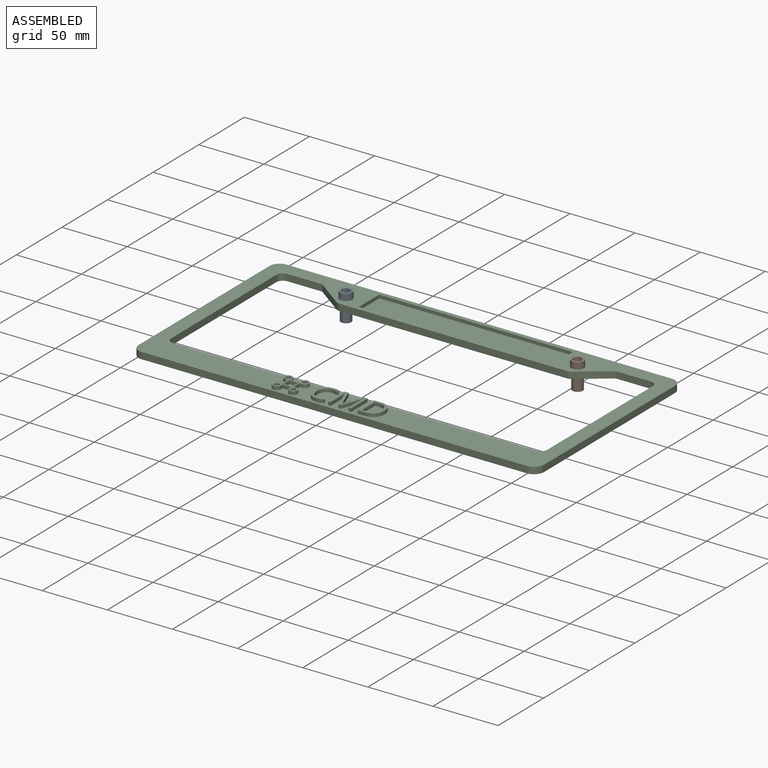
[diagram: assembled view]
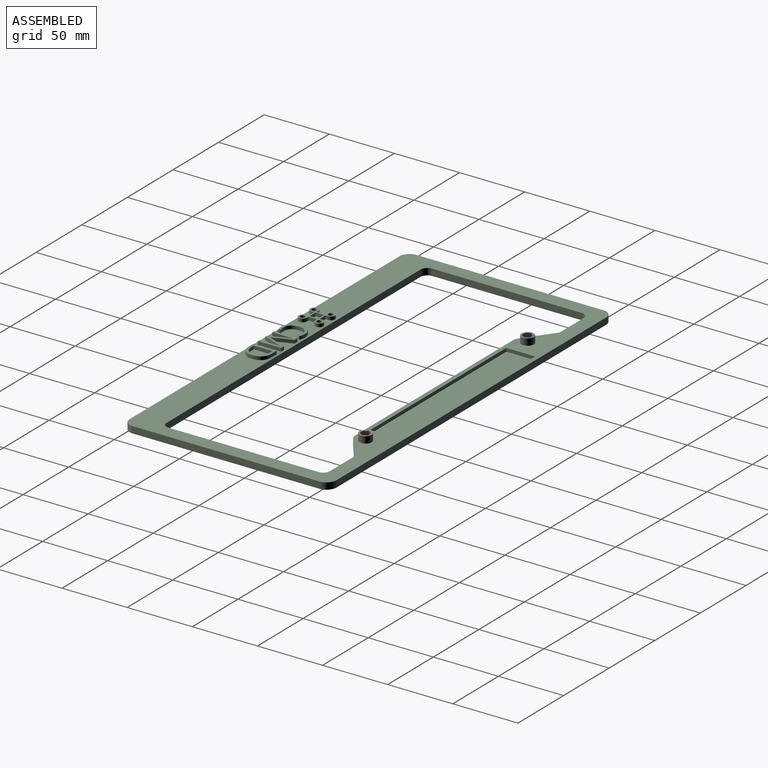
[diagram: assembled view, second angle]
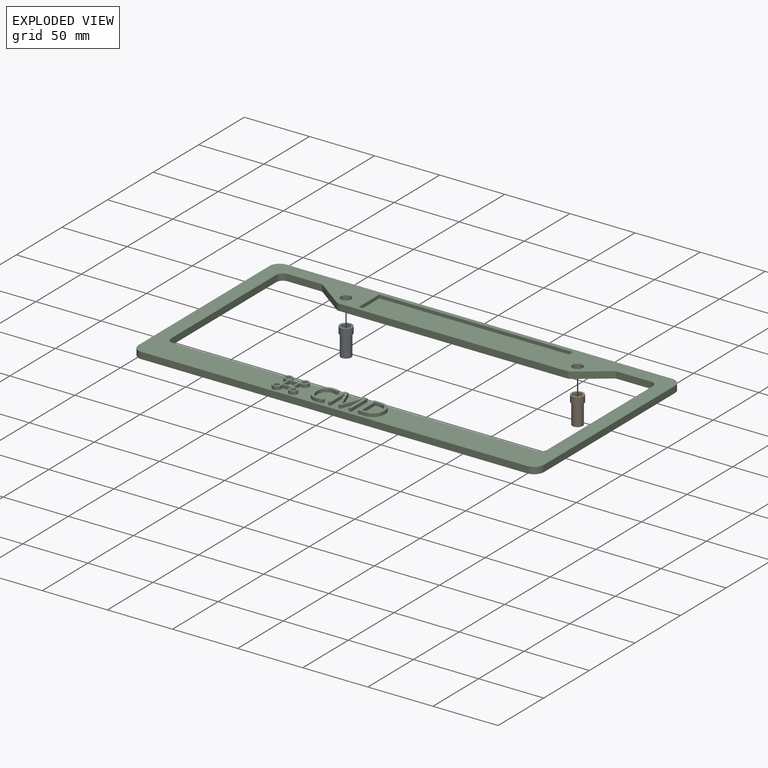
[diagram: exploded view]
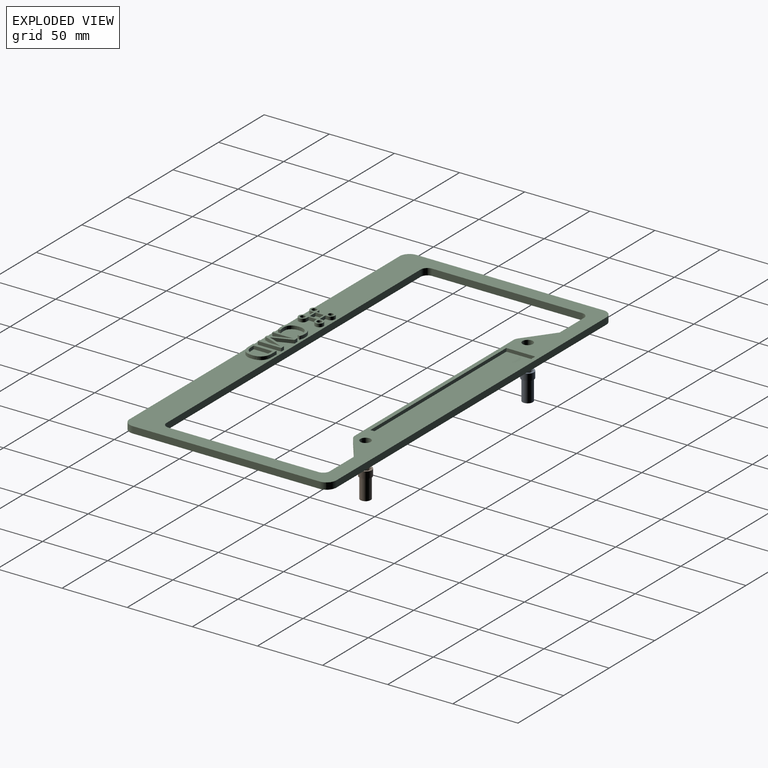
[diagram: exploded view, second angle]
ASSEMBLY  parts=3 mates=2
PART A: 12 faces, bbox 9.5x9.5x21 mm
  f0: cylinder r=3.97mm len=15.88mm, axis (0,0,-1), area 395.9mm2, adj f1,f4
  f1: plane 7.94x7.94mm, normal (0,0,-1), area 49.5mm2, adj f0
  f2: cylinder r=4.76mm len=9.53mm, axis (0,0,-1), area 152mm2, adj f3,f4
  f3: plane 9.53x9.53mm, normal (0,0,1), area 34.5mm2, adj f2,f5,f6,f7,f8,f9,f10
  f4: plane 9.53x9.53mm, normal (0,0,-1), area 21.8mm2, adj f0,f2
  f5: plane 5.08x3.16mm, normal (0.84,-0.54,0), area 19.1mm2, adj f3,f6,f10,f11
  f6: plane 5.08x3.35mm, normal (0.89,0.46,0), area 19.1mm2, adj f3,f5,f7,f11
  f7: plane 5.08x3.76mm, normal (0.05,1,0), area 19.1mm2, adj f3,f6,f8,f11
  f8: plane 5.08x3.16mm, normal (-0.84,0.54,0), area 19.1mm2, adj f3,f7,f9,f11
  f9: plane 5.08x3.35mm, normal (-0.89,-0.46,0), area 19.1mm2, adj f3,f8,f10,f11
  f10: plane 5.08x3.76mm, normal (-0.05,-1,0), area 19.1mm2, adj f3,f5,f9,f11
  f11: plane 7.52x6.69mm, normal (0,0,1), area 36.8mm2, adj f5,f6,f7,f8,f9,f10
PART B: same geometry as A
PART C: 112 faces, bbox 311.2x158.8x7.6 mm
  f0: plane 311.15x158.75mm, normal (0,0,1), area 12598.2mm2, adj f1,f2,f3,f4,f5,f6,f7,f8
  f1: plane 295.91x5.08mm, normal (0,1,0), area 1503.2mm2, adj f0,f15,f20,f23
  f2: plane 143.51x5.08mm, normal (-1,0,0), area 729mm2, adj f0,f15,f20,f21
  f3: plane 295.91x5.08mm, normal (0,-1,0), area 1503.2mm2, adj f0,f15,f21,f22
  f4: plane 26.67x5.08mm, normal (0,-1,0), area 135.5mm2, adj f0,f13,f15,f16
  f5: plane 115.25x5.08mm, normal (-1,0,0), area 585.5mm2, adj f0,f15,f16,f17
  f6: plane 278.77x5.08mm, normal (0,1,0), area 1416.1mm2, adj f0,f15,f17,f18
  f7: plane 115.25x5.08mm, normal (1,0,0), area 585.5mm2, adj f0,f15,f18,f19
  f8: plane 26.67x5.08mm, normal (0,-1,0), area 135.5mm2, adj f0,f9,f15,f19
  f9: plane 22.47x16.48mm, normal (-0.59,-0.81,0), area 141.6mm2, adj f0,f8,f15,f24
  f10: plane 174.47x5.08mm, normal (0,-1,0), area 886.3mm2, adj f0,f15,f24,f25
  f11: cylinder r=3.97mm len=7.94mm, axis (0,0,-1), area 126.7mm2, adj f0,f15
  f12: cylinder r=3.97mm len=7.94mm, axis (0,0,-1), area 126.7mm2, adj f0,f15
  f13: plane 22.47x16.48mm, normal (0.59,-0.81,0), area 141.6mm2, adj f0,f4,f15,f25
  f14: plane 143.51x5.08mm, normal (1,0,0), area 729mm2, adj f0,f15,f22,f23
  f15: plane 311.15x158.75mm, normal (0,0,-1), area 16553.7mm2, adj f1,f2,f3,f4,f5,f6,f7,f8
  f16: cylinder r=5.08mm len=5.08mm, axis (0,0,-1), area 40.5mm2, adj f0,f4,f5,f15
  f17: cylinder r=5.08mm len=5.08mm, axis (0,0,-1), area 40.5mm2, adj f0,f5,f6,f15
  f18: cylinder r=5.08mm len=5.08mm, axis (0,0,1), area 40.5mm2, adj f0,f6,f7,f15
  f19: cylinder r=5.08mm len=5.08mm, axis (0,0,-1), area 40.5mm2, adj f0,f7,f8,f15
  f20: cylinder r=7.62mm len=7.62mm, axis (0,0,1), area 60.8mm2, adj f0,f1,f2,f15
  f21: cylinder r=7.62mm len=7.62mm, axis (0,0,-1), area 60.8mm2, adj f0,f2,f3,f15
  f22: cylinder r=7.62mm len=7.62mm, axis (0,0,1), area 60.8mm2, adj f0,f3,f14,f15
  f23: cylinder r=7.62mm len=7.62mm, axis (0,0,-1), area 60.8mm2, adj f0,f1,f14,f15
  f24: cylinder r=5.08mm len=5.08mm, axis (0,0,-1), area 16.3mm2, adj f0,f9,f10,f15
  f25: cylinder r=5.08mm len=5.08mm, axis (0,0,1), area 16.3mm2, adj f0,f10,f13,f15
  f26: plane 6.35x2.54mm, normal (0,1,0), area 16.1mm2, adj f27,f47,f50,f55
  f27: plane 6.35x2.54mm, normal (1,0,0), area 16.1mm2, adj f26,f28,f50,f55
  f28: plane 6.35x2.54mm, normal (0,-1,0), area 16.1mm2, adj f27,f47,f50,f55
  f29: plane 6.35x2.54mm, normal (-1,0,0), area 16.1mm2, adj f0,f30,f48,f50
  f30: plane 2.54x1.91mm, normal (0,1,0), area 4.8mm2, adj f0,f29,f31,f50
  f31: cylinder r=3.17mm len=6.35mm, axis (0,0,-1), area 38mm2, adj f0,f30,f32,f50
  f32: plane 2.54x1.91mm, normal (1,0,0), area 4.8mm2, adj f0,f31,f33,f50
  f33: plane 6.35x2.54mm, normal (0,-1,0), area 16.1mm2, adj f0,f32,f34,f50
  f34: plane 2.54x1.91mm, normal (-1,0,0), area 4.8mm2, adj f0,f33,f35,f50
  f35: cylinder r=3.17mm len=6.35mm, axis (0,0,-1), area 38mm2, adj f0,f34,f36,f50
  f36: plane 2.54x1.91mm, normal (0,1,0), area 4.8mm2, adj f0,f35,f37,f50
  f37: plane 6.35x2.54mm, normal (1,0,0), area 16.1mm2, adj f0,f36,f38,f50
  f38: plane 2.54x1.91mm, normal (0,-1,0), area 4.8mm2, adj f0,f37,f39,f50
  f39: cylinder r=3.17mm len=6.35mm, axis (0,0,-1), area 38mm2, adj f0,f38,f40,f50
  f40: plane 2.54x1.91mm, normal (-1,0,0), area 4.8mm2, adj f0,f39,f41,f50
  f41: plane 6.35x2.54mm, normal (0,1,0), area 16.1mm2, adj f0,f40,f42,f50
  f42: plane 2.54x1.91mm, normal (1,0,0), area 4.8mm2, adj f0,f41,f43,f50
  f43: cylinder r=3.17mm len=6.35mm, axis (0,0,-1), area 38mm2, adj f0,f42,f48,f50
  f44: cylinder r=1.91mm len=3.81mm, axis (0,0,-1), area 30.4mm2, adj f50,f52
  f45: cylinder r=1.91mm len=3.81mm, axis (0,0,-1), area 30.4mm2, adj f50,f53
  f46: cylinder r=1.91mm len=3.81mm, axis (0,0,-1), area 30.4mm2, adj f50,f54
  f47: plane 6.35x2.54mm, normal (-1,0,0), area 16.1mm2, adj f26,f28,f50,f55
  f48: plane 2.54x1.91mm, normal (0,-1,0), area 4.8mm2, adj f0,f29,f43,f50
  f49: cylinder r=1.91mm len=3.81mm, axis (0,0,-1), area 30.4mm2, adj f50,f51
  f50: plane 19.05x19.05mm, normal (0,0,1), area 122mm2, adj f26,f27,f28,f29,f30,f31,f32,f33
  f51: plane 3.81x3.81mm, normal (0,0,1), area 11.4mm2, adj f49
  f52: plane 3.81x3.81mm, normal (0,0,1), area 11.4mm2, adj f44
  f53: plane 3.81x3.81mm, normal (0,0,1), area 11.4mm2, adj f45
  f54: plane 3.81x3.81mm, normal (0,0,1), area 11.4mm2, adj f46
  f55: plane 6.35x6.35mm, normal (0,0,1), area 40.3mm2, adj f26,f27,f28,f47
  f56: plane 22.23x2.54mm, normal (1,0,0), area 56.5mm2, adj f0,f57,f59,f60
  f57: plane 149.07x2.54mm, normal (0,1,0), area 378.6mm2, adj f0,f56,f58,f60
  f58: plane 22.23x2.54mm, normal (-1,-0.01,0), area 56.5mm2, adj f0,f57,f59,f60
  f59: plane 148.86x2.54mm, normal (0,-1,0), area 378.1mm2, adj f0,f56,f58,f60
  f60: plane 149.07x22.23mm, normal (0,0,1), area 3310.8mm2, adj f56,f57,f58,f59
  f61: extruded ~4.67x2.54mm, area 13.3mm2, adj f0,f62,f75,f76
  f62: extruded ~4.08x2.54mm, area 10.7mm2, adj f0,f61,f63,f76
  f63: plane 2.54x1.79mm, normal (0.9,-0.44,0), area 5.1mm2, adj f0,f62,f64,f76
  f64: extruded ~4.94x2.54mm, area 12.9mm2, adj f0,f63,f65,f76
  f65: extruded ~4.61x2.54mm, area 12.2mm2, adj f0,f64,f66,f76
  f66: extruded ~3.22x3mm, area 11.3mm2, adj f0,f65,f67,f76
  f67: extruded ~4.86x2.54mm, area 12.7mm2, adj f0,f66,f68,f76
  f68: extruded ~6.84x2.54mm, area 18.6mm2, adj f0,f67,f69,f76
  f69: extruded ~6.12x2.54mm, area 17.2mm2, adj f0,f68,f70,f76
  f70: extruded ~4.61x2.54mm, area 11.9mm2, adj f0,f69,f71,f76
  f71: plane 2.54x1.83mm, normal (1,0,0), area 4.6mm2, adj f0,f70,f72,f76
  f72: extruded ~4.29x2.54mm, area 11.1mm2, adj f0,f71,f73,f76
  f73: extruded ~4.71x2.54mm, area 13.4mm2, adj f0,f72,f74,f76
  f74: extruded ~5.45x2.54mm, area 14.8mm2, adj f0,f73,f75,f76
  f75: extruded ~5.4x2.54mm, area 14.7mm2, adj f0,f61,f74,f76
  f76: plane 18.46x13.58mm, normal (0,0,1), area 70.5mm2, adj f61,f62,f63,f64,f65,f66,f67,f68
  f77: plane 15.92x6.09mm, normal (-0.93,-0.36,0), area 43.3mm2, adj f0,f78,f94,f95
  f78: plane 2.54x1.68mm, normal (0,-1,0), area 4.3mm2, adj f0,f77,f79,f95
  f79: plane 15.89x6.14mm, normal (0.93,-0.36,0), area 43.3mm2, adj f0,f78,f80,f95
  f80: plane 2.54x0.1mm, normal (0,-1,0), area 0.2mm2, adj f0,f79,f81,f95
  f81: extruded ~4.32x2.54mm, area 11mm2, adj f0,f80,f82,f95
  f82: plane 11.57x2.54mm, normal (-1,0,0), area 29.4mm2, adj f0,f81,f83,f95
  f83: plane 2.54x2.09mm, normal (0,-1,0), area 5.3mm2, adj f0,f82,f84,f95
  f84: plane 17.96x2.54mm, normal (1,0,0), area 45.6mm2, adj f0,f83,f85,f95
  f85: plane 3.12x2.54mm, normal (0,1,0), area 7.9mm2, adj f0,f84,f86,f95
  f86: plane 14.81x5.73mm, normal (-0.93,0.36,0), area 40.3mm2, adj f0,f85,f87,f95
  f87: plane 2.54x0.1mm, normal (0,1,0), area 0.2mm2, adj f0,f86,f88,f95
  f88: plane 14.81x5.69mm, normal (0.93,0.36,0), area 40.3mm2, adj f0,f87,f89,f95
  f89: plane 3.14x2.54mm, normal (0,1,0), area 8mm2, adj f0,f88,f90,f95
  f90: plane 17.96x2.54mm, normal (-1,0,0), area 45.6mm2, adj f0,f89,f91,f95
  f91: plane 2.54x1.93mm, normal (0,-1,0), area 4.9mm2, adj f0,f90,f92,f95
  f92: plane 11.42x2.54mm, normal (1,0,0), area 29mm2, adj f0,f91,f93,f95
  f93: extruded ~4.5x2.54mm, area 11.4mm2, adj f0,f92,f94,f95
  f94: plane 2.54x0.1mm, normal (0,-1,0), area 0.2mm2, adj f0,f77,f93,f95
  f95: plane 17.96x17.78mm, normal (0,0,1), area 137.9mm2, adj f77,f78,f79,f80,f81,f82,f83,f84
  f96: extruded ~5.29x2.54mm, area 14.5mm2, adj f97,f109,f110,f111
  f97: extruded ~5.43x2.54mm, area 15mm2, adj f96,f98,f110,f111
  f98: extruded ~5.61x2.54mm, area 15.4mm2, adj f97,f99,f110,f111
  f99: plane 2.54x2.54mm, normal (0,1,0), area 6.5mm2, adj f98,f100,f110,f111
  f100: plane 14.35x2.54mm, normal (1,0,0), area 36.4mm2, adj f99,f101,f110,f111
  f101: plane 3.03x2.54mm, normal (0,-1,0), area 7.7mm2, adj f100,f109,f110,f111
  f102: extruded ~6.8x2.54mm, area 18.8mm2, adj f0,f103,f108,f110
  f103: extruded ~6.49x2.54mm, area 18mm2, adj f0,f102,f104,f110
  f104: extruded ~6.51x2.54mm, area 18mm2, adj f0,f103,f105,f110
  f105: plane 5.5x2.54mm, normal (0,1,0), area 14mm2, adj f0,f104,f106,f110
  f106: plane 17.96x2.54mm, normal (-1,0,0), area 45.6mm2, adj f0,f105,f107,f110
  f107: plane 4.98x2.54mm, normal (0,-1,0), area 12.6mm2, adj f0,f106,f108,f110
  f108: extruded ~6.94x2.54mm, area 19.1mm2, adj f0,f102,f107,f110
  f109: extruded ~5.24x2.54mm, area 14.4mm2, adj f96,f101,f110,f111
  f110: plane 17.96x14.33mm, normal (0,0,1), area 102mm2, adj f96,f97,f98,f99,f100,f101,f102,f103
  f111: plane 14.35x10.04mm, normal (0,0,1), area 126.5mm2, adj f96,f97,f98,f99,f100,f101,f109
PLACE A t=(-337.27,-63.66,32.14)mm
PLACE B t=(-159.47,-63.66,32.14)mm
PLACE C t=(-248.37,-123.99,42.93)mm
MATE fastened C.f11 <-> A.f0  axis (0,0,1) through (-337.27,-63.66,48.01)mm
MATE fastened C.f12 <-> B.f0  axis (0,0,1) through (-159.47,-63.66,48.01)mm
